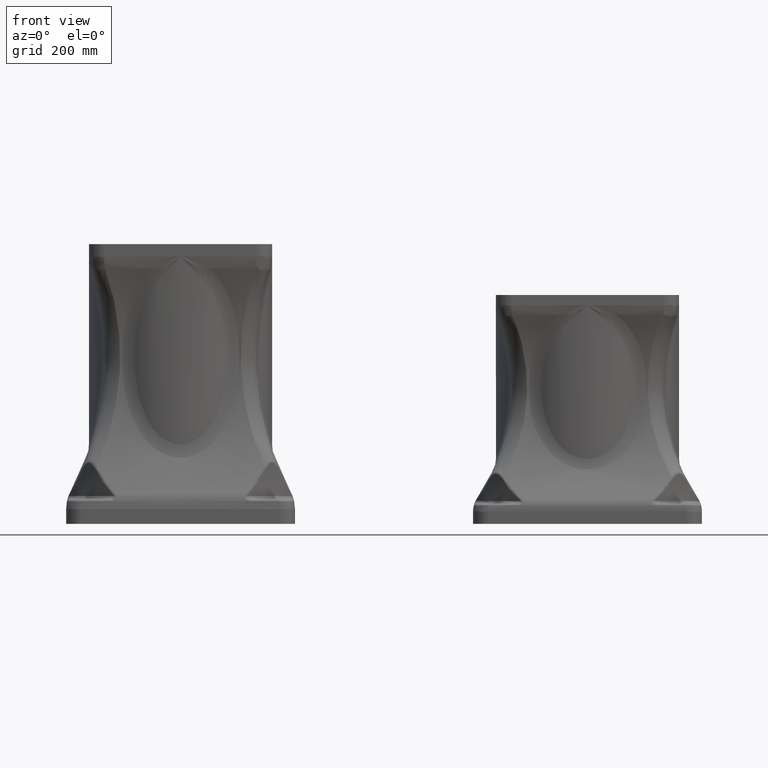
[diagram: clean part render]
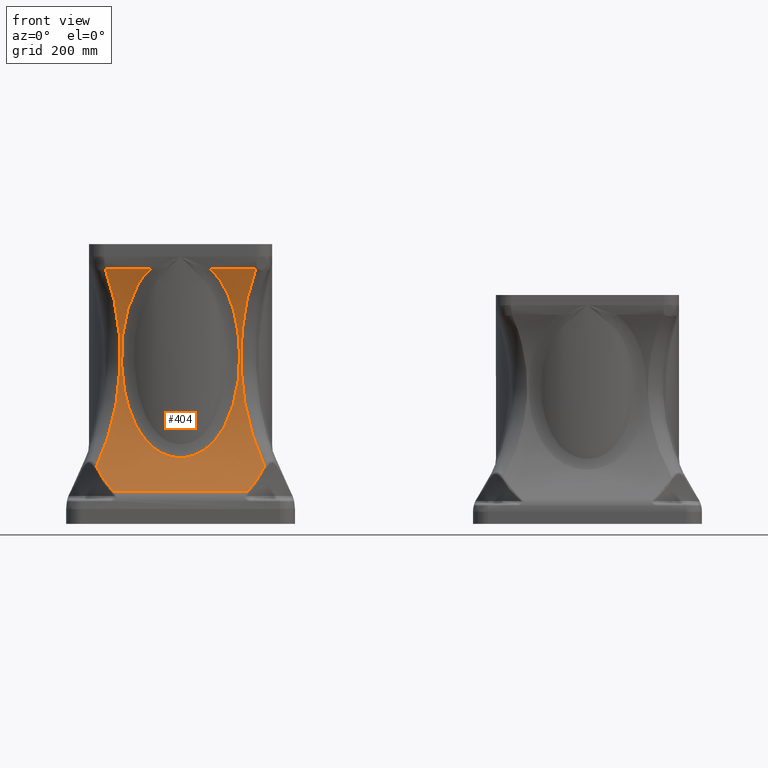
[diagram: same view with one face highlighted and labeled with its STEP entity id]
A machine part, front view. The second image highlights one B-rep face of the part: STEP entity #404.
In plain terms, the highlighted face is a SurfaceOfExtrusion surface.
Its self-contained STEP definition (entity closure, byte-faithful):
#404=ADVANCED_FACE('',(#877),#878,.F.);
#877=FACE_OUTER_BOUND('',#16897,.T.);
#878=SURFACE_OF_LINEAR_EXTRUSION('',#16898,#16899);
#16897=EDGE_LOOP('',(#21227,#21228,#21229,#21230,#21231,#21232,#21233,#21234));
#16898=(B_SPLINE_CURVE(3,(#21236,#21237,#21238,#21239,#21240,#21241,#21242),.UNSPECIFIED.,.T.,.F.)B_SPLINE_CURVE_WITH_KNOTS((4,3,4),(0.0,0.5,1.0),.UNSPECIFIED.)RATIONAL_B_SPLINE_CURVE((1.0,0.333333333333334,0.333333333333334,1.0,0.333333333333334,0.333333333333334,1.0))BOUNDED_CURVE()REPRESENTATION_ITEM('')GEOMETRIC_REPRESENTATION_ITEM()CURVE());
#16899=VECTOR('',#21249,1.0);
#21227=ORIENTED_EDGE('',*,*,#22002,.T.);
#21228=ORIENTED_EDGE('',*,*,#22080,.T.);
#21229=ORIENTED_EDGE('',*,*,#22186,.T.);
#21230=ORIENTED_EDGE('',*,*,#22187,.T.);
#21231=ORIENTED_EDGE('',*,*,#22049,.T.);
#21232=ORIENTED_EDGE('',*,*,#22188,.T.);
#21233=ORIENTED_EDGE('',*,*,#22108,.T.);
#21234=ORIENTED_EDGE('',*,*,#22189,.T.);
#21236=CARTESIAN_POINT('',(62.8571428571425,-373.54,279.412222171419));
#21237=CARTESIAN_POINT('',(62.8571428571424,386.46,279.412222171419));
#21238=CARTESIAN_POINT('',(62.8571428571424,386.46,-649.476666548581));
#21239=CARTESIAN_POINT('',(62.8571428571425,-373.54,-649.476666548581));
#21240=CARTESIAN_POINT('',(62.8571428571424,-1133.54,-649.476666548581));
#21241=CARTESIAN_POINT('',(62.8571428571424,-1133.54,279.412222171419));
#21242=CARTESIAN_POINT('',(62.8571428571425,-373.54,279.412222171419));
#21249=DIRECTION('',(-1.0,0.0,0.0));
#22002=EDGE_CURVE('',#22714,#22712,#22715,.F.);
#22049=EDGE_CURVE('',#22791,#22796,#22798,.T.);
#22080=EDGE_CURVE('',#22712,#22851,#22853,.T.);
#22108=EDGE_CURVE('',#22890,#22801,#22895,.T.);
#22186=EDGE_CURVE('',#22851,#23014,#23015,.T.);
#22187=EDGE_CURVE('',#23014,#22791,#23016,.T.);
#22188=EDGE_CURVE('',#22796,#22890,#23017,.T.);
#22189=EDGE_CURVE('',#22801,#22714,#23018,.T.);
#22712=VERTEX_POINT('',#30184);
#22714=VERTEX_POINT('',#30197);
#22715=LINE('',#30198,#30199);
#22791=VERTEX_POINT('',#31030);
#22796=VERTEX_POINT('',#31121);
#22798=B_SPLINE_CURVE_WITH_KNOTS('',3,(#31132,#31133,#31134,#31135,#31136,#31137,#31138,#31139,#31140,#31141,#31142,#31143,#31144,#31145,#31146,#31147,#31148,#31149,#31150,#31151,#31152,#31153,#31154,#31155,#31156,#31157,#31158,#31159,#31160,#31161,#31162,#31163,#31164,#31165,#31166,#31167,#31168,#31169,#31170,#31171,#31172,#31173,#31174,#31175,#31176,#31177,#31178,#31179,#31180,#31181,#31182,#31183,#31184,#31185,#31186,#31187,#31188,#31189,#31190,#31191,#31192,#31193,#31194,#31195,#31196,#31197,#31198,#31199,#31200,#31201,#31202,#31203,#31204,#31205,#31206,#31207,#31208,#31209,#31210,#31211),.UNSPECIFIED.,.F.,.F.,(4,1,1,1,1,1,1,1,1,1,1,1,1,1,1,1,1,1,1,1,1,1,1,1,1,1,1,1,1,1,1,1,1,1,1,1,1,1,1,1,1,1,1,1,1,1,1,1,1,1,1,1,1,1,1,1,1,1,1,1,1,1,1,1,1,1,1,1,1,1,1,1,1,1,1,1,1,4),(0.0,0.00120542909607778,0.00241568537212334,0.00363088274406693,0.0048511342541132,0.00607655205471893,0.00730724739344733,0.00854333059868269,0.00978491106619261,0.0110320972465176,0.012284996633169,0.0135437157516183,0.0148083601490511,0.022182295953098,0.0297470276111053,0.0372508143169347,0.0449398592020765,0.0526207832785261,0.0604800279145578,0.0760267595834111,0.0922070762140544,0.124433590108847,0.157231032475055,0.190136816900761,0.223302088188629,0.256215989312032,0.289013086776226,0.321523579143529,0.353264024368377,0.369278534355077,0.384600626027614,0.399877147587678,0.414860858600342,0.429673522464787,0.444163108590053,0.458322626071896,0.465403835134903,0.472353571709464,0.479276228402783,0.486114337303853,0.492881655142263,0.499619655371331,0.506415252788124,0.513238889088465,0.520066807696843,0.526977846576852,0.533823132000132,0.540795218593097,0.554983005371535,0.569431319833318,0.584124192829968,0.599212158208724,0.614529467106634,0.629827129411366,0.645821874516405,0.677883322777919,0.710450951668232,0.743375193525001,0.776394621242932,0.809593967623931,0.842462448830073,0.87522125993818,0.907501217450158,0.923566258990963,0.939011012768811,0.946905418976246,0.954622540406696,0.962429849255961,0.970048442312436,0.977687255032145,0.985133377890597,0.987306220781596,0.989461798055865,0.991600652833952,0.993723336650307,0.995830409275477,0.997922438517261,1.0),.UNSPECIFIED.);
#22801=VERTEX_POINT('',#31242);
#22851=VERTEX_POINT('',#31755);
#22853=B_SPLINE_CURVE_WITH_KNOTS('',3,(#31766,#31767,#31768,#31769,#31770,#31771,#31772,#31773,#31774,#31775,#31776,#31777,#31778,#31779,#31780,#31781,#31782,#31783,#31784,#31785,#31786,#31787,#31788,#31789,#31790,#31791,#31792,#31793,#31794,#31795,#31796,#31797,#31798,#31799),.UNSPECIFIED.,.F.,.F.,(4,1,1,1,1,1,1,1,1,1,1,1,1,1,1,1,1,1,1,1,1,1,1,1,1,1,1,1,1,1,1,4),(0.0,0.0228230390168424,0.0457072395377892,0.068653931887683,0.0916644436170006,0.11474009928033,0.137882220216203,0.161092124328351,0.184371125868382,0.207720535219962,0.231141658684626,0.254635798269141,0.278204251474579,0.301848311087024,0.325569264970051,0.349368395858931,0.373246981156582,0.397206292731346,0.421247596716505,0.445372153311621,0.469581216585666,0.493876034281916,0.542948829633126,0.592338578834932,0.64205493201197,0.692107427953308,0.74250548788145,0.793258409339924,0.844375360197741,0.895865372767963,0.94773733803692,1.0),.UNSPECIFIED.);
#22890=VERTEX_POINT('',#32171);
#22895=B_SPLINE_CURVE_WITH_KNOTS('',3,(#32287,#32288,#32289,#32290,#32291,#32292,#32293,#32294,#32295,#32296,#32297,#32298,#32299,#32300,#32301,#32302,#32303,#32304,#32305,#32306,#32307,#32308,#32309,#32310,#32311,#32312,#32313,#32314,#32315,#32316,#32317,#32318,#32319,#32320,#32321,#32322,#32323,#32324,#32325,#32326,#32327,#32328,#32329,#32330,#32331,#32332,#32333,#32334,#32335,#32336,#32337,#32338,#32339,#32340,#32341,#32342),.UNSPECIFIED.,.F.,.F.,(4,1,1,1,1,1,1,1,1,1,1,1,1,1,1,1,1,1,1,1,1,1,1,1,1,1,1,1,1,1,1,1,1,1,1,1,1,1,1,1,1,1,1,1,1,1,1,1,1,1,1,1,1,4),(0.0,0.0052334333934968,0.0104598706564403,0.0156792868818648,0.0208916571176919,0.0260969563818616,0.0312951596775202,0.0364862420082675,0.0416701783934522,0.0468469438835148,0.0520165135753725,0.0571788626278467,0.0623339662771177,0.067481799852219,0.0726223387905498,0.0777555586534152,0.0828814351415837,0.0879999441108575,0.0931110615876554,0.0982147637846009,0.103311027116114,0.108399828214,0.113481143943036,0.118554951416543,0.123621228011954,0.154961249560531,0.186125949692494,0.217112100763213,0.247916597987251,0.310488441220976,0.372689938107336,0.435275564500491,0.497845776343685,0.560401161901833,0.623301290555305,0.685773211303217,0.748947602298501,0.779965856177832,0.811253432599518,0.842805057742296,0.874615301959017,0.884057109120189,0.893533644821643,0.903044678363356,0.912589976056347,0.922169301608917,0.931782416512624,0.941429080427704,0.951109051567609,0.960822087082369,0.970567943440439,0.980346376808702,0.990157143430311,1.0),.UNSPECIFIED.);
#23014=VERTEX_POINT('',#33174);
#23015=B_SPLINE_CURVE_WITH_KNOTS('',3,(#33175,#33176,#33177,#33178,#33179,#33180,#33181,#33182,#33183,#33184,#33185,#33186,#33187,#33188,#33189,#33190,#33191,#33192,#33193,#33194,#33195,#33196,#33197,#33198,#33199,#33200,#33201,#33202,#33203,#33204,#33205,#33206,#33207,#33208,#33209,#33210,#33211,#33212,#33213,#33214,#33215,#33216,#33217,#33218,#33219,#33220,#33221,#33222,#33223,#33224,#33225,#33226,#33227,#33228,#33229,#33230),.UNSPECIFIED.,.F.,.F.,(4,1,1,1,1,1,1,1,1,1,1,1,1,1,1,1,1,1,1,1,1,1,1,1,1,1,1,1,1,1,1,1,1,1,1,1,1,1,1,1,1,1,1,1,1,1,1,1,1,1,1,1,1,4),(0.0,0.00533522196878996,0.0106610871444752,0.0159775570665178,0.0212845932038671,0.0265821569722687,0.0318702097516442,0.0371487129035437,0.0424176277886692,0.0476769157844548,0.0529265383027026,0.0581664568072786,0.0633966328318495,0.0686170279976653,0.0738276040313835,0.0790283227829207,0.0842191462433454,0.0894000365627854,0.0945709560683631,0.0997318672821484,0.10488273293912,0.110023516005139,0.11515417969493,0.120274687490056,0.125385003156895,0.157192507774806,0.188743194309137,0.22003167353114,0.251052704192184,0.314222823816167,0.376699016217547,0.439594324500523,0.502154531950315,0.564719934844104,0.627310371770269,0.689507074161433,0.75208371353186,0.782885026847763,0.813870135412768,0.84503590956962,0.876379086690884,0.88573752664494,0.895121660941139,0.904531344845586,0.913966430825025,0.923426768881648,0.932912206888054,0.942422590922055,0.951957765601074,0.961517574415804,0.971101860062873,0.98071046477618,0.990343230656639,1.0),.UNSPECIFIED.);
#23016=LINE('',#33231,#33232);
#23017=LINE('',#33233,#33234);
#23018=B_SPLINE_CURVE_WITH_KNOTS('',3,(#33235,#33236,#33237,#33238,#33239,#33240,#33241,#33242,#33243,#33244,#33245,#33246,#33247,#33248,#33249,#33250,#33251,#33252,#33253,#33254,#33255,#33256,#33257,#33258,#33259,#33260,#33261,#33262,#33263,#33264,#33265,#33266,#33267,#33268),.UNSPECIFIED.,.F.,.F.,(4,1,1,1,1,1,1,1,1,1,1,1,1,1,1,1,1,1,1,1,1,1,1,1,1,1,1,1,1,1,1,4),(0.0,0.0261794387937204,0.0522602718444019,0.0782435775041998,0.104130443650874,0.129921967514732,0.155619255504052,0.181223423028832,0.206735594322999,0.232156902264862,0.257488488195935,0.282731501737985,0.307887100608322,0.332956450433318,0.357940724560106,0.382841103866453,0.40765877656879,0.43239493802838,0.45705079055564,0.481627543212559,0.506126411613296,0.552430628513472,0.598426869968168,0.644123875906201,0.689530465463315,0.734655531928046,0.779508037600939,0.824097008568167,0.868431529391427,0.912520737716901,0.956373818807049,1.0),.UNSPECIFIED.);
#30184=CARTESIAN_POINT('',(-29.6411959083351,-61.1093023255817,-449.40275703219));
#30197=CARTESIAN_POINT('',(-294.644518377379,-61.1093023255817,-449.40275703219));
#30198=CARTESIAN_POINT('',(62.8571428571425,-61.1093023255817,-449.40275703219));
#30199=VECTOR('',#34506,1.0);
#31030=CARTESIAN_POINT('',(-104.593222629105,-21.3418604651162,-10.6503179501164));
#31121=CARTESIAN_POINT('',(-219.692491656609,-21.3418604651162,-10.6503179501164));
#31132=CARTESIAN_POINT('',(-104.593222629106,-21.3418604651165,-10.6503179501161));
#31133=CARTESIAN_POINT('',(-104.332861906977,-21.2640539498857,-10.8853836424577));
#31134=CARTESIAN_POINT('',(-103.811097839753,-21.1081293407068,-11.3564563553408));
#31135=CARTESIAN_POINT('',(-103.035676941027,-20.8721646234888,-12.0736397983658));
#31136=CARTESIAN_POINT('',(-102.263586499407,-20.6341470024095,-12.8003375463119));
#31137=CARTESIAN_POINT('',(-101.495461506606,-20.3939933127406,-13.5372422049078));
#31138=CARTESIAN_POINT('',(-100.731130758809,-20.1517742802756,-14.2841994913427));
#31139=CARTESIAN_POINT('',(-99.9706404109758,-19.9075199124668,-15.0412836312768));
#31140=CARTESIAN_POINT('',(-99.2139779961428,-19.6612719652868,-15.8085074354322));
#31141=CARTESIAN_POINT('',(-98.4611469025989,-19.4130698295754,-16.5859003589102));
#31142=CARTESIAN_POINT('',(-97.7121460621002,-19.1629542350442,-17.3734878424607));
#31143=CARTESIAN_POINT('',(-96.9669762821216,-18.9109666595692,-18.1712953636852));
#31144=CARTESIAN_POINT('',(-96.2256353285248,-18.6571479790625,-18.9793530089133));
#31145=CARTESIAN_POINT('',(-94.3017488351543,-17.9903692026443,-21.114059472742));
#31146=CARTESIAN_POINT('',(-91.2581181912504,-16.8909731641962,-24.7021684538612));
#31147=CARTESIAN_POINT('',(-87.2906853034545,-15.3634086888965,-29.8697823956277));
#31148=CARTESIAN_POINT('',(-83.5109726578511,-13.8216450816097,-35.2899621921953));
#31149=CARTESIAN_POINT('',(-79.9495120403978,-12.2899230614762,-40.9006851164393));
#31150=CARTESIAN_POINT('',(-76.5656823295954,-10.7625946392484,-46.7472087478568));
#31151=CARTESIAN_POINT('',(-72.3397487615204,-8.76795972443658,-54.7507083943281));
#31152=CARTESIAN_POINT('',(-67.5079719496389,-6.34163967582348,-65.2501635658));
#31153=CARTESIAN_POINT('',(-60.8124780696489,-2.73769728475102,-82.7428581645051));
#31154=CARTESIAN_POINT('',(-54.2545585579911,1.12962597208772,-105.779760747784));
#31155=CARTESIAN_POINT('',(-49.0499484123161,4.44340573337627,-134.359429750009));
#31156=CARTESIAN_POINT('',(-46.2437183467252,6.31480415354037,-163.680500997219));
#31157=CARTESIAN_POINT('',(-45.7390798259081,6.657798910316,-193.221104788161));
#31158=CARTESIAN_POINT('',(-47.5084157345592,5.46400195518828,-222.658373164531));
#31159=CARTESIAN_POINT('',(-51.6120063777446,2.78705938743547,-251.570447634343));
#31160=CARTESIAN_POINT('',(-58.200441606021,-1.25052166937049,-279.501037366258));
#31161=CARTESIAN_POINT('',(-66.0286456593155,-5.61159230050464,-301.755288247928));
#31162=CARTESIAN_POINT('',(-73.8208215733959,-9.50274114867319,-318.433638611262));
#31163=CARTESIAN_POINT('',(-80.4625348965263,-12.5524525065268,-330.265974628839));
#31164=CARTESIAN_POINT('',(-87.8748445511395,-15.6400352230578,-341.246472913921));
#31165=CARTESIAN_POINT('',(-96.1832862159295,-18.7145216145628,-351.373778518967));
#31166=CARTESIAN_POINT('',(-105.362104775869,-21.6539360666082,-360.43218236596));
#31167=CARTESIAN_POINT('',(-115.389818391412,-24.3336815346646,-368.235939230857));
#31168=CARTESIAN_POINT('',(-124.452321092391,-26.2504264083544,-373.566099415805));
#31169=CARTESIAN_POINT('',(-132.026184558526,-27.514792645269,-376.995207409046));
#31170=CARTESIAN_POINT('',(-137.847400402324,-28.3140464433439,-379.131028645938));
#31171=CARTESIAN_POINT('',(-143.760907105094,-28.9495386452307,-380.809074381893));
#31172=CARTESIAN_POINT('',(-149.748022053529,-29.4119244874145,-382.01908997404));
#31173=CARTESIAN_POINT('',(-155.767140039256,-29.695318467852,-382.756249135791));
#31174=CARTESIAN_POINT('',(-161.818669810037,-29.7969755630086,-383.019859757732));
#31175=CARTESIAN_POINT('',(-167.889473225063,-29.7149743168394,-382.8072564887));
#31176=CARTESIAN_POINT('',(-173.945826062277,-29.4480987164164,-382.113384664867));
#31177=CARTESIAN_POINT('',(-179.953025746022,-29.001509804385,-380.945530176628));
#31178=CARTESIAN_POINT('',(-185.844137476687,-28.385469006485,-379.32046052167));
#31179=CARTESIAN_POINT('',(-191.620672443665,-27.6102146172741,-377.251556029494));
#31180=CARTESIAN_POINT('',(-199.176301317174,-26.3751360314657,-373.908124401525));
#31181=CARTESIAN_POINT('',(-208.255761172273,-24.4864465491999,-368.669124410983));
#31182=CARTESIAN_POINT('',(-218.313984719804,-21.8317437631082,-360.962076504036));
#31183=CARTESIAN_POINT('',(-227.547930907733,-18.90574840848,-351.980459009514));
#31184=CARTESIAN_POINT('',(-235.925955228918,-15.8312178757159,-341.899569694313));
#31185=CARTESIAN_POINT('',(-243.414058170811,-12.7316070436025,-330.928861222957));
#31186=CARTESIAN_POINT('',(-250.107307034489,-9.67404919105621,-319.128661432153));
#31187=CARTESIAN_POINT('',(-257.999724784262,-5.75006476075562,-302.411698425479));
#31188=CARTESIAN_POINT('',(-265.922811353585,-1.34684942491162,-280.081444280201));
#31189=CARTESIAN_POINT('',(-272.592312628098,2.73498420154873,-252.0197097106));
#31190=CARTESIAN_POINT('',(-276.743005990693,5.44103458389314,-223.028722060201));
#31191=CARTESIAN_POINT('',(-278.541915129153,6.65458312711445,-193.513928911595));
#31192=CARTESIAN_POINT('',(-278.056436031466,6.32458122562275,-163.942227905677));
#31193=CARTESIAN_POINT('',(-275.271891772365,4.46715868543692,-134.630916205481));
#31194=CARTESIAN_POINT('',(-270.093668978219,1.16829193590032,-106.051863182676));
#31195=CARTESIAN_POINT('',(-263.567499075001,-2.68399348106156,-83.0349286012733));
#31196=CARTESIAN_POINT('',(-256.912134081849,-6.27105692683555,-65.5769405837741));
#31197=CARTESIAN_POINT('',(-252.123040060616,-8.68102419931168,-55.1154243748948));
#31198=CARTESIAN_POINT('',(-247.919892866795,-10.6702380113685,-47.1091309104193));
#31199=CARTESIAN_POINT('',(-244.522075160407,-12.2080831416124,-41.2065038849436));
#31200=CARTESIAN_POINT('',(-240.930423314879,-13.7567115211991,-35.5219302932322));
#31201=CARTESIAN_POINT('',(-237.108135731649,-15.3188710844017,-30.0225373548485));
#31202=CARTESIAN_POINT('',(-233.100086733576,-16.8642103742995,-24.7904943636466));
#31203=CARTESIAN_POINT('',(-229.860839379816,-18.0352734264076,-20.9668405089994));
#31204=CARTESIAN_POINT('',(-227.564986129339,-18.8280322299102,-18.4333684530151));
#31205=CARTESIAN_POINT('',(-226.282461545694,-19.2615909139004,-17.0609889248128));
#31206=CARTESIAN_POINT('',(-224.988518170156,-19.68956318536,-15.7188421252132));
#31207=CARTESIAN_POINT('',(-223.683287839206,-20.1117700082465,-14.4066407998511));
#31208=CARTESIAN_POINT('',(-222.366258355954,-20.5279109076876,-13.1247953637758));
#31209=CARTESIAN_POINT('',(-221.039326648975,-20.9381498235173,-11.8711812247501));
#31210=CARTESIAN_POINT('',(-220.140396943836,-21.2076019019613,-11.0563299105934));
#31211=CARTESIAN_POINT('',(-219.692491656609,-21.3418604651165,-10.6503179501161));
#31242=CARTESIAN_POINT('',(-327.499781308628,-36.9312955682746,-400.554676429033));
#31755=CARTESIAN_POINT('',(3.21406702291311,-36.9312955682747,-400.554676429034));
#31766=CARTESIAN_POINT('',(-29.6411959083352,-61.1093023255818,-449.402757032191));
#31767=CARTESIAN_POINT('',(-29.3388224038878,-60.9222560985512,-449.072019070673));
#31768=CARTESIAN_POINT('',(-28.7332650901812,-60.5476623953542,-448.409656831352));
#31769=CARTESIAN_POINT('',(-27.8333687452925,-59.984273854244,-447.406402398593));
#31770=CARTESIAN_POINT('',(-26.9381263988286,-59.4189088162487,-446.394332071985));
#31771=CARTESIAN_POINT('',(-26.0482342653322,-58.85155333004,-445.372792630398));
#31772=CARTESIAN_POINT('',(-25.1635050273124,-58.2822686211105,-444.341899833072));
#31773=CARTESIAN_POINT('',(-24.2839890883221,-57.7110965131584,-443.30156246961));
#31774=CARTESIAN_POINT('',(-23.4096728859225,-57.1380848835038,-442.251744962659));
#31775=CARTESIAN_POINT('',(-22.5405600703921,-56.563280821335,-441.192396717591));
#31776=CARTESIAN_POINT('',(-21.6766496593468,-55.9867324766756,-440.123471146383));
#31777=CARTESIAN_POINT('',(-20.817941916822,-55.408488570597,-439.044920559818));
#31778=CARTESIAN_POINT('',(-19.9644367709725,-54.8285985348329,-437.956697554414));
#31779=CARTESIAN_POINT('',(-19.1161342399758,-54.2471124819414,-436.858754651526));
#31780=CARTESIAN_POINT('',(-18.2730343173903,-53.6640812211246,-435.751044407311));
#31781=CARTESIAN_POINT('',(-17.4351370030387,-53.0795562614313,-434.633519395603));
#31782=CARTESIAN_POINT('',(-16.6024422946545,-52.4935898194023,-433.506132227512));
#31783=CARTESIAN_POINT('',(-15.7749501903207,-51.9062348214073,-432.368835552906));
#31784=CARTESIAN_POINT('',(-14.9526606871404,-51.3175449226226,-431.221582098881));
#31785=CARTESIAN_POINT('',(-14.1355737841672,-50.7275744642427,-430.064324579091));
#31786=CARTESIAN_POINT('',(-13.3236894720096,-50.1363786619679,-428.89701608615));
#31787=CARTESIAN_POINT('',(-12.5170077717186,-49.5440129267132,-427.719608673477));
#31788=CARTESIAN_POINT('',(-11.4440170355961,-48.7494871819607,-426.129760658928));
#31789=CARTESIAN_POINT('',(-10.1145497542548,-47.7526186871983,-424.11458587414));
#31790=CARTESIAN_POINT('',(-8.54257609378608,-46.554292376354,-421.658340972879));
#31791=CARTESIAN_POINT('',(-6.99310413325811,-45.353681010045,-419.162387761368));
#31792=CARTESIAN_POINT('',(-5.46614039344032,-44.1512573091016,-416.626388378652));
#31793=CARTESIAN_POINT('',(-3.96166947775203,-42.9474979020697,-414.05001731035));
#31794=CARTESIAN_POINT('',(-2.47974614242345,-41.7429143766102,-411.432909863134));
#31795=CARTESIAN_POINT('',(-1.02016384238103,-40.5379433344707,-408.77487114537));
#31796=CARTESIAN_POINT('',(0.416299140341777,-39.3333599904807,-406.075086252954));
#31797=CARTESIAN_POINT('',(1.8325803910362,-38.1287186460108,-403.335103366213));
#31798=CARTESIAN_POINT('',(2.75242111319272,-37.3314336899812,-401.483800673314));
#31799=CARTESIAN_POINT('',(3.21406702291324,-36.9312955682748,-400.554676429034));
#32171=CARTESIAN_POINT('',(-310.679601328904,-21.3418604651162,-10.6503179501164));
#32287=CARTESIAN_POINT('',(-310.679601328904,-21.3418604651165,-10.6503179501161));
#32288=CARTESIAN_POINT('',(-310.451270521996,-21.1302341894211,-11.2911809059473));
#32289=CARTESIAN_POINT('',(-309.994914144154,-20.7072645431411,-12.5720501026066));
#32290=CARTESIAN_POINT('',(-309.319906907914,-20.0816124489953,-14.4980243857742));
#32291=CARTESIAN_POINT('',(-308.652457888633,-19.4629527969635,-16.4257073295321));
#32292=CARTESIAN_POINT('',(-307.993215792972,-18.8518897228652,-18.3554593053078));
#32293=CARTESIAN_POINT('',(-307.342007149674,-18.2482678893473,-20.2870951305557));
#32294=CARTESIAN_POINT('',(-306.698878344436,-17.6521343328165,-22.2205755276703));
#32295=CARTESIAN_POINT('',(-306.063816972086,-17.0634812596917,-24.1558222333383));
#32296=CARTESIAN_POINT('',(-305.436826348331,-16.4823148252553,-26.0927674497063));
#32297=CARTESIAN_POINT('',(-304.817905585159,-15.9086367435226,-28.0313406315272));
#32298=CARTESIAN_POINT('',(-304.207054918671,-15.3424492063489,-29.9714720297142));
#32299=CARTESIAN_POINT('',(-303.604274284433,-14.7837535697959,-31.9130917542035));
#32300=CARTESIAN_POINT('',(-303.009563698419,-14.2325507072303,-33.8561300348825));
#32301=CARTESIAN_POINT('',(-302.422923155152,-13.6888409168646,-35.8005171621243));
#32302=CARTESIAN_POINT('',(-301.844352654948,-13.1526239485661,-37.7461835128867));
#32303=CARTESIAN_POINT('',(-301.273852196595,-12.6238989988547,-39.6930595540602));
#32304=CARTESIAN_POINT('',(-300.711421779453,-12.1026647146582,-41.6410758511496));
#32305=CARTESIAN_POINT('',(-300.157061402368,-11.5889191943398,-43.5901630780389));
#32306=CARTESIAN_POINT('',(-299.610771065909,-11.0826599914369,-45.540252016822));
#32307=CARTESIAN_POINT('',(-299.072550764538,-10.5838841108305,-47.4912735959026));
#32308=CARTESIAN_POINT('',(-298.542400515633,-10.0925880329615,-49.4431587849228));
#32309=CARTESIAN_POINT('',(-298.020320251443,-9.60876763416439,-51.3958390226975));
#32310=CARTESIAN_POINT('',(-297.506310221436,-9.13241849421778,-53.3492446600152));
#32311=CARTESIAN_POINT('',(-297.000369494021,-8.66353476238436,-55.3033107944466));
#32312=CARTESIAN_POINT('',(-295.641603974622,-7.40423811949031,-60.6378656531645));
#32313=CARTESIAN_POINT('',(-293.545329878942,-5.46104669577126,-69.3834732435505));
#32314=CARTESIAN_POINT('',(-290.928063316039,-3.03501336751106,-81.6028350091102));
#32315=CARTESIAN_POINT('',(-288.610092736249,-0.886891012142175,-93.8591199079432));
#32316=CARTESIAN_POINT('',(-285.89357137502,1.63028894894352,-110.382119534289));
#32317=CARTESIAN_POINT('',(-283.234282427472,4.09615763462267,-131.266333918391));
#32318=CARTESIAN_POINT('',(-281.242900934761,5.94049367755334,-156.646365276272));
#32319=CARTESIAN_POINT('',(-280.484532843473,6.64468724940347,-182.150915041658));
#32320=CARTESIAN_POINT('',(-280.964618689935,6.198413654444,-207.716112652175));
#32321=CARTESIAN_POINT('',(-282.688709700856,4.60181119738167,-233.224387772735));
#32322=CARTESIAN_POINT('',(-285.637624896294,1.86731864465751,-258.509576419163));
#32323=CARTESIAN_POINT('',(-289.806260596655,-1.99489869663061,-283.559096144855));
#32324=CARTESIAN_POINT('',(-294.245705255758,-6.11071148511259,-304.026940022738));
#32325=CARTESIAN_POINT('',(-298.368458258329,-9.9312420110361,-320.160908173932));
#32326=CARTESIAN_POINT('',(-301.726674936574,-13.0434230177995,-332.092491917112));
#32327=CARTESIAN_POINT('',(-305.385667873586,-16.4349556626577,-343.975128756461));
#32328=CARTESIAN_POINT('',(-308.40686585283,-19.2354691405012,-352.991902701432));
#32329=CARTESIAN_POINT('',(-310.603616594891,-21.2714092466881,-359.214852215531));
#32330=CARTESIAN_POINT('',(-311.858106755955,-22.4339995613669,-362.686856010926));
#32331=CARTESIAN_POINT('',(-313.140475056067,-23.6224050591745,-366.155658813274));
#32332=CARTESIAN_POINT('',(-314.450726279248,-24.8366582833266,-369.62078966559));
#32333=CARTESIAN_POINT('',(-315.788859355343,-26.0767814542025,-373.081763807171));
#32334=CARTESIAN_POINT('',(-317.154873926384,-27.3427894725204,-376.538098658806));
#32335=CARTESIAN_POINT('',(-318.548772697101,-28.6346928309695,-379.989306240395));
#32336=CARTESIAN_POINT('',(-319.970545346869,-29.9524825036565,-383.434908731484));
#32337=CARTESIAN_POINT('',(-321.420230839625,-31.2961874182534,-386.874384815085));
#32338=CARTESIAN_POINT('',(-322.897683162718,-32.6656583445437,-390.307370942021));
#32339=CARTESIAN_POINT('',(-324.403450167681,-34.0613783714746,-393.732907681624));
#32340=CARTESIAN_POINT('',(-325.935477233795,-35.4814228058125,-397.15226740822));
#32341=CARTESIAN_POINT('',(-326.977779335351,-36.4474788633373,-399.419306233856));
#32342=CARTESIAN_POINT('',(-327.499781308628,-36.9312955682748,-400.554676429034));
#33174=CARTESIAN_POINT('',(-13.6061129568106,-21.3418604651162,-10.6503179501164));
#33175=CARTESIAN_POINT('',(3.21406702291314,-36.9312955682748,-400.554676429034));
#33176=CARTESIAN_POINT('',(2.93057934128997,-36.6685478703433,-399.939727190287));
#33177=CARTESIAN_POINT('',(2.36410115240678,-36.1435132755236,-398.71090719703));
#33178=CARTESIAN_POINT('',(1.52360497162816,-35.3644754891514,-396.862091172027));
#33179=CARTESIAN_POINT('',(0.69080751353932,-34.5925583561958,-395.011323875967));
#33180=CARTESIAN_POINT('',(-0.133685623881516,-33.8283265366856,-393.158163720056));
#33181=CARTESIAN_POINT('',(-0.950036282371706,-33.0716363498261,-391.302827330541));
#33182=CARTESIAN_POINT('',(-1.75820121448262,-32.3225325750392,-389.445355404635));
#33183=CARTESIAN_POINT('',(-2.55819197951993,-31.5810087951762,-387.585835611938));
#33184=CARTESIAN_POINT('',(-3.35000549075396,-30.8470714427429,-385.724343014934));
#33185=CARTESIAN_POINT('',(-4.13364257520837,-30.1207226870647,-383.860955977549));
#33186=CARTESIAN_POINT('',(-4.90910301402764,-29.4019650095791,-381.995751901255));
#33187=CARTESIAN_POINT('',(-5.67638686778977,-28.6907999836998,-380.128808351804));
#33188=CARTESIAN_POINT('',(-6.43549412236008,-27.9872286034867,-378.260202745567));
#33189=CARTESIAN_POINT('',(-7.18642478352654,-27.2912511985986,-376.390012420826));
#33190=CARTESIAN_POINT('',(-7.92917885169555,-26.6028674599594,-374.518314606339));
#33191=CARTESIAN_POINT('',(-8.66375632870945,-25.9220764359406,-372.645186417269));
#33192=CARTESIAN_POINT('',(-9.39015721581642,-25.2488765367486,-370.770704844518));
#33193=CARTESIAN_POINT('',(-10.1083815149782,-24.5832655360967,-368.894946743566));
#33194=CARTESIAN_POINT('',(-10.8184292256724,-23.9252405762253,-367.017988832284));
#33195=CARTESIAN_POINT('',(-11.5203003563417,-23.2747981629503,-365.139907653909));
#33196=CARTESIAN_POINT('',(-12.2139948819027,-22.6319341978134,-363.260779670496));
#33197=CARTESIAN_POINT('',(-12.8995129018288,-21.9966438728295,-361.380680871086));
#33198=CARTESIAN_POINT('',(-13.5768540519143,-21.3689220769983,-359.499688186106));
#33199=CARTESIAN_POINT('',(-14.2460196931085,-20.7487618990308,-357.61787418109));
#33200=CARTESIAN_POINT('',(-16.0584825835113,-19.0689693231539,-352.455810046352));
#33201=CARTESIAN_POINT('',(-18.8998162447806,-16.4351986991028,-343.975925079139));
#33202=CARTESIAN_POINT('',(-22.5586964115656,-13.0437412133055,-332.093656877458));
#33203=CARTESIAN_POINT('',(-25.9170031470109,-9.93144004517661,-320.16172680698));
#33204=CARTESIAN_POINT('',(-30.0398136573936,-6.11091595174987,-304.027857920752));
#33205=CARTESIAN_POINT('',(-34.4793182630353,-1.99499807381673,-283.559655566682));
#33206=CARTESIAN_POINT('',(-38.6479232785449,1.8671575204865,-258.510792390952));
#33207=CARTESIAN_POINT('',(-41.5969416668977,4.60175534942113,-233.22504145449));
#33208=CARTESIAN_POINT('',(-43.3210395897788,6.198361360306,-207.717421225022));
#33209=CARTESIAN_POINT('',(-43.8011860171131,6.64469057466586,-182.151572615689));
#33210=CARTESIAN_POINT('',(-43.0428805516327,5.94055910400258,-156.647669456601));
#33211=CARTESIAN_POINT('',(-41.0515109363065,4.09621931580365,-131.2669811865));
#33212=CARTESIAN_POINT('',(-38.3922697520492,1.63043739124401,-110.383189523504));
#33213=CARTESIAN_POINT('',(-35.6758433769287,-0.886737917060289,-93.860093712233));
#33214=CARTESIAN_POINT('',(-33.3579415292155,-3.03475375582368,-81.6042238996436));
#33215=CARTESIAN_POINT('',(-30.7405774053272,-5.46083963823295,-69.3844268244183));
#33216=CARTESIAN_POINT('',(-28.511049810628,-7.52756785157533,-60.0827754098844));
#33217=CARTESIAN_POINT('',(-26.8601681837422,-9.05759304017687,-53.6462871876507));
#33218=CARTESIAN_POINT('',(-25.9072523033669,-9.94069159496032,-50.0405045022435));
#33219=CARTESIAN_POINT('',(-24.9268231889033,-10.8492698496134,-46.4373318494623));
#33220=CARTESIAN_POINT('',(-23.918877165549,-11.7833556133223,-42.837192510458));
#33221=CARTESIAN_POINT('',(-22.8834150062769,-12.7429681696115,-39.2405243618119));
#33222=CARTESIAN_POINT('',(-21.8204372221861,-13.7281202060563,-35.6477625633271));
#33223=CARTESIAN_POINT('',(-20.7299408822955,-14.7388213436045,-32.059346953365));
#33224=CARTESIAN_POINT('',(-19.6119371322098,-15.7750617516522,-28.4757087854109));
#33225=CARTESIAN_POINT('',(-18.4663840511787,-16.8368741413889,-24.8973155066431));
#33226=CARTESIAN_POINT('',(-17.2934386083832,-17.9241011219225,-21.3245032774128));
#33227=CARTESIAN_POINT('',(-16.0925126340781,-19.0372666716984,-17.7581032878238));
#33228=CARTESIAN_POINT('',(-14.8658094035757,-20.1743112489432,-14.1970946709803));
#33229=CARTESIAN_POINT('',(-14.0263599697179,-20.952354666494,-11.8335572346437));
#33230=CARTESIAN_POINT('',(-13.6061129568106,-21.3418604651165,-10.6503179501161));
#33231=CARTESIAN_POINT('',(62.8571428571425,-21.3418604651162,-10.6503179501164));
#33232=VECTOR('',#34593,1.0);
#33233=CARTESIAN_POINT('',(62.8571428571425,-21.3418604651162,-10.6503179501164));
#33234=VECTOR('',#34594,1.0);
#33235=CARTESIAN_POINT('',(-327.499781308628,-36.9312955682741,-400.554676429033));
#33236=CARTESIAN_POINT('',(-327.269321734091,-37.1314707652104,-401.020591242844));
#33237=CARTESIAN_POINT('',(-326.80927061881,-37.5310671924228,-401.950665986536));
#33238=CARTESIAN_POINT('',(-326.11005308735,-38.1327152343825,-403.336507121158));
#33239=CARTESIAN_POINT('',(-325.405793432493,-38.7344843399174,-404.712232778428));
#33240=CARTESIAN_POINT('',(-324.695749005217,-39.3365529114137,-406.077410240073));
#33241=CARTESIAN_POINT('',(-323.980117677556,-39.9387881423424,-407.432203976641));
#33242=CARTESIAN_POINT('',(-323.258846716922,-40.5411411044256,-408.776619791432));
#33243=CARTESIAN_POINT('',(-322.531950168126,-41.1435414703349,-410.110706204354));
#33244=CARTESIAN_POINT('',(-321.799424281583,-41.7459255623137,-411.434500771873));
#33245=CARTESIAN_POINT('',(-321.061270049896,-42.3482288733804,-412.748044373949));
#33246=CARTESIAN_POINT('',(-320.317487202078,-42.9503880557726,-414.051377389289));
#33247=CARTESIAN_POINT('',(-319.568075804112,-43.5523403863232,-415.344540697544));
#33248=CARTESIAN_POINT('',(-318.81303583242,-44.1540239040395,-416.627575395201));
#33249=CARTESIAN_POINT('',(-318.052367287446,-44.7553773686882,-417.900522855093));
#33250=CARTESIAN_POINT('',(-317.286070163777,-45.3563402659191,-419.163424692577));
#33251=CARTESIAN_POINT('',(-316.514144456701,-45.956852803754,-420.416322764279));
#33252=CARTESIAN_POINT('',(-315.73659016573,-46.5568558968462,-421.659259130762));
#33253=CARTESIAN_POINT('',(-314.953407274137,-47.15629120744,-422.89227613176));
#33254=CARTESIAN_POINT('',(-314.164595826949,-47.7551009722645,-424.115416050234));
#33255=CARTESIAN_POINT('',(-313.370155640811,-48.3532286248974,-425.328722302854));
#33256=CARTESIAN_POINT('',(-312.331888472338,-49.1284727021898,-426.890548643578));
#33257=CARTESIAN_POINT('',(-311.041690461069,-50.0803037259483,-428.789330894156));
#33258=CARTESIAN_POINT('',(-309.48814928906,-51.208177337502,-431.010939758085));
#33259=CARTESIAN_POINT('',(-307.915623214978,-52.331432026189,-433.196076765238));
#33260=CARTESIAN_POINT('',(-306.324115018386,-53.4496901295359,-435.34506912308));
#33261=CARTESIAN_POINT('',(-304.71362046825,-54.5625842758996,-437.458243104583));
#33262=CARTESIAN_POINT('',(-303.084153294375,-55.6697576531724,-439.535939947784));
#33263=CARTESIAN_POINT('',(-301.435662989583,-56.7708573744468,-441.57844552283));
#33264=CARTESIAN_POINT('',(-299.768336204401,-57.8655596143382,-443.586252018196));
#33265=CARTESIAN_POINT('',(-298.08148218088,-58.9534755236506,-445.559087687039));
#33266=CARTESIAN_POINT('',(-296.377658003295,-60.0344988393885,-447.499507181626));
#33267=CARTESIAN_POINT('',(-295.221231756688,-60.7516545392483,-448.769438379397));
#33268=CARTESIAN_POINT('',(-294.644518377379,-61.1093023255818,-449.402757032191));
#34506=DIRECTION('',(-1.0,0.0,0.0));
#34593=DIRECTION('',(-1.0,0.0,0.0));
#34594=DIRECTION('',(-1.0,0.0,0.0));